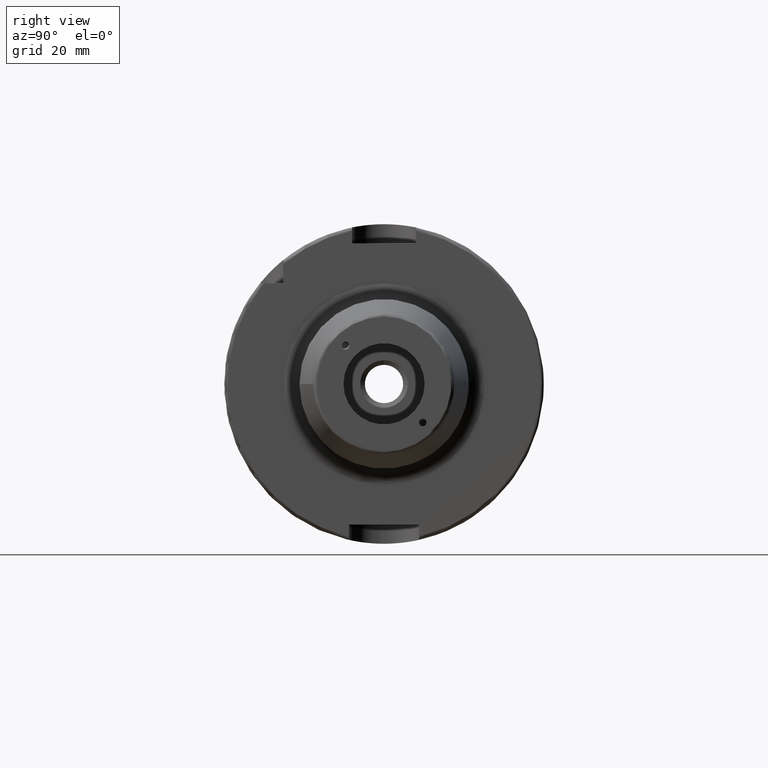
[diagram: clean part render]
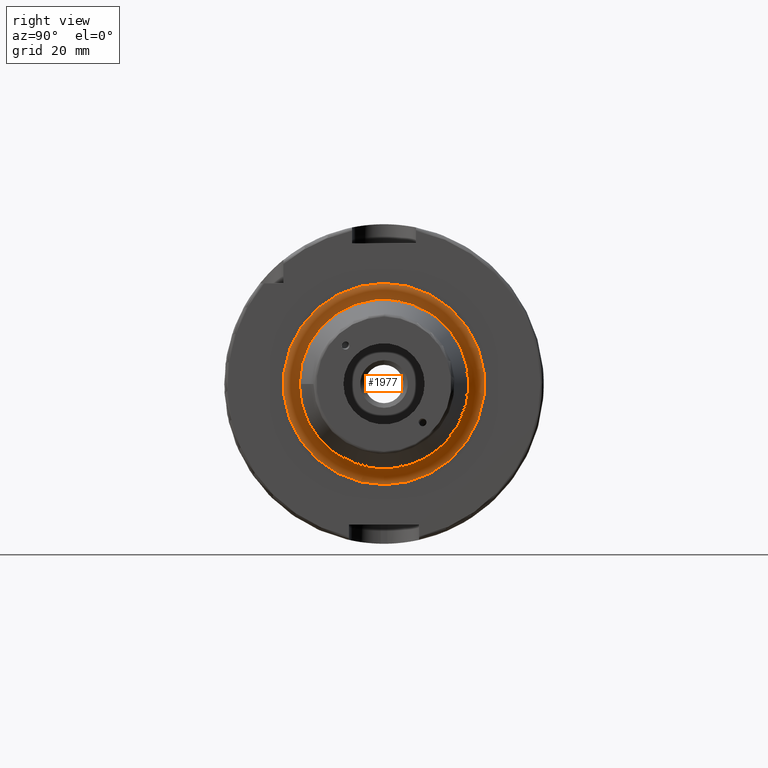
[diagram: same view with one face highlighted and labeled with its STEP entity id]
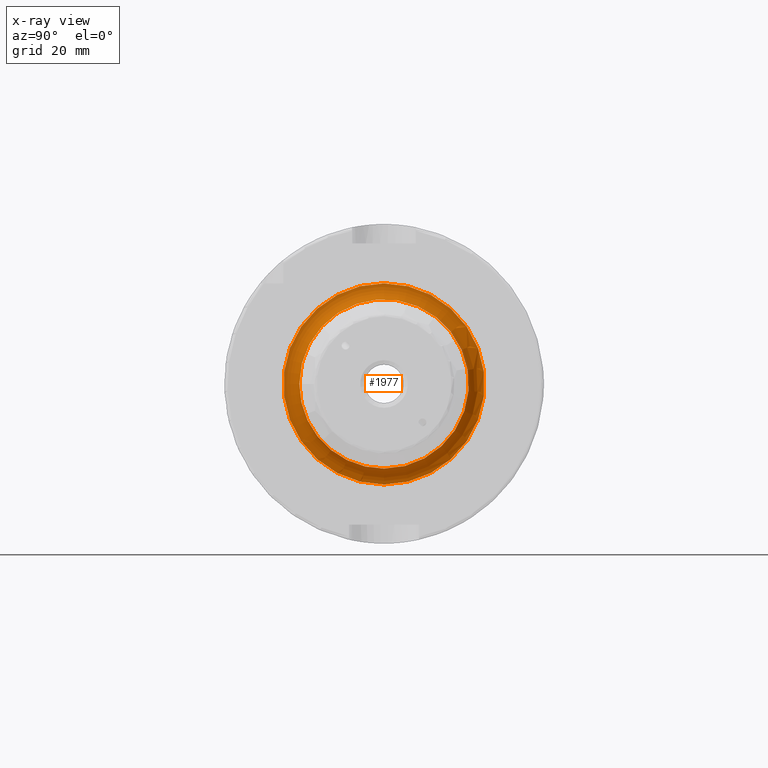
[diagram: x-ray of the same camera — body ghosted, the highlighted face saturated]
A machine part, right view. The second image highlights one B-rep face of the part: STEP entity #1977.
The next image is the same camera in x-ray: the body ghosted, the highlighted face saturated — about 1% of this face is hidden behind the body in this view.
In plain terms, the highlighted toroidal blend (fillet) surface has major radius 31.5 mm and minor (blend) radius 5 mm.
Its self-contained STEP definition (entity closure, byte-faithful):
#137=TOROIDAL_SURFACE('',#2129,31.5,5.);
#215=FACE_OUTER_BOUND('',#337,.T.);
#337=EDGE_LOOP('',(#1351,#1352,#1353,#1354,#1355));
#681=CIRCLE('',#2130,26.5);
#682=CIRCLE('',#2131,5.);
#683=CIRCLE('',#2132,31.5);
#684=CIRCLE('',#2133,26.5);
#814=VERTEX_POINT('',#3027);
#815=VERTEX_POINT('',#3028);
#816=VERTEX_POINT('',#3030);
#1023=EDGE_CURVE('',#814,#815,#681,.T.);
#1024=EDGE_CURVE('',#815,#816,#682,.T.);
#1025=EDGE_CURVE('',#816,#816,#683,.T.);
#1026=EDGE_CURVE('',#815,#814,#684,.T.);
#1351=ORIENTED_EDGE('',*,*,#1023,.T.);
#1352=ORIENTED_EDGE('',*,*,#1024,.T.);
#1353=ORIENTED_EDGE('',*,*,#1025,.T.);
#1354=ORIENTED_EDGE('',*,*,#1024,.F.);
#1355=ORIENTED_EDGE('',*,*,#1026,.T.);
#1977=ADVANCED_FACE('',(#215),#137,.F.);
#2129=AXIS2_PLACEMENT_3D('',#3026,#2410,#2411);
#2130=AXIS2_PLACEMENT_3D('',#3029,#2412,#2413);
#2131=AXIS2_PLACEMENT_3D('',#3031,#2414,#2415);
#2132=AXIS2_PLACEMENT_3D('',#3032,#2416,#2417);
#2133=AXIS2_PLACEMENT_3D('',#3033,#2418,#2419);
#2410=DIRECTION('center_axis',(-1.,0.,0.));
#2411=DIRECTION('ref_axis',(0.,0.,1.));
#2412=DIRECTION('center_axis',(-1.,0.,0.));
#2413=DIRECTION('ref_axis',(0.,-1.,-1.22464679914735E-16));
#2414=DIRECTION('center_axis',(0.,-1.,1.22464679914735E-16));
#2415=DIRECTION('ref_axis',(0.,-1.22464679914735E-16,-1.));
#2416=DIRECTION('center_axis',(1.,0.,0.));
#2417=DIRECTION('ref_axis',(0.,-1.,-1.22464679914735E-16));
#2418=DIRECTION('center_axis',(-1.,0.,0.));
#2419=DIRECTION('ref_axis',(0.,-1.,-1.22464679914735E-16));
#3026=CARTESIAN_POINT('Origin',(34.,0.,0.));
#3027=CARTESIAN_POINT('',(34.,-26.5,-3.24531401774049E-15));
#3028=CARTESIAN_POINT('',(34.,-3.24531401774049E-15,-26.5));
#3029=CARTESIAN_POINT('Origin',(34.,0.,0.));
#3030=CARTESIAN_POINT('',(29.,-3.85763741731416E-15,-31.5));
#3031=CARTESIAN_POINT('Origin',(34.,-3.85763741731416E-15,-31.5));
#3032=CARTESIAN_POINT('Origin',(29.,0.,0.));
#3033=CARTESIAN_POINT('Origin',(34.,0.,0.));